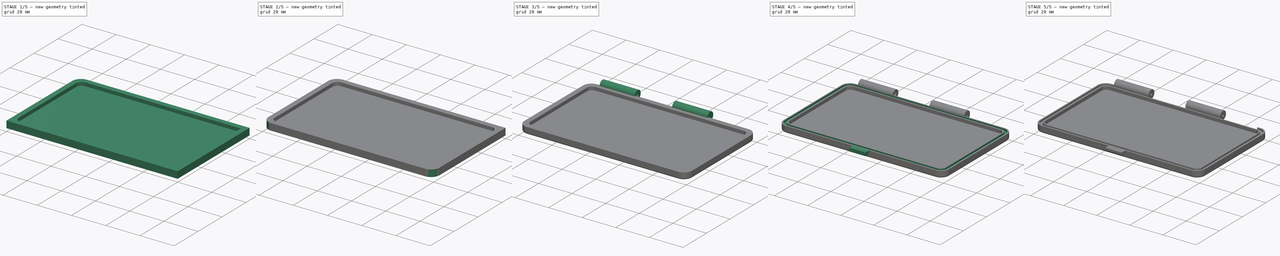
[diagram: build sequence overview — one tinted view per stage of 5, left to right]
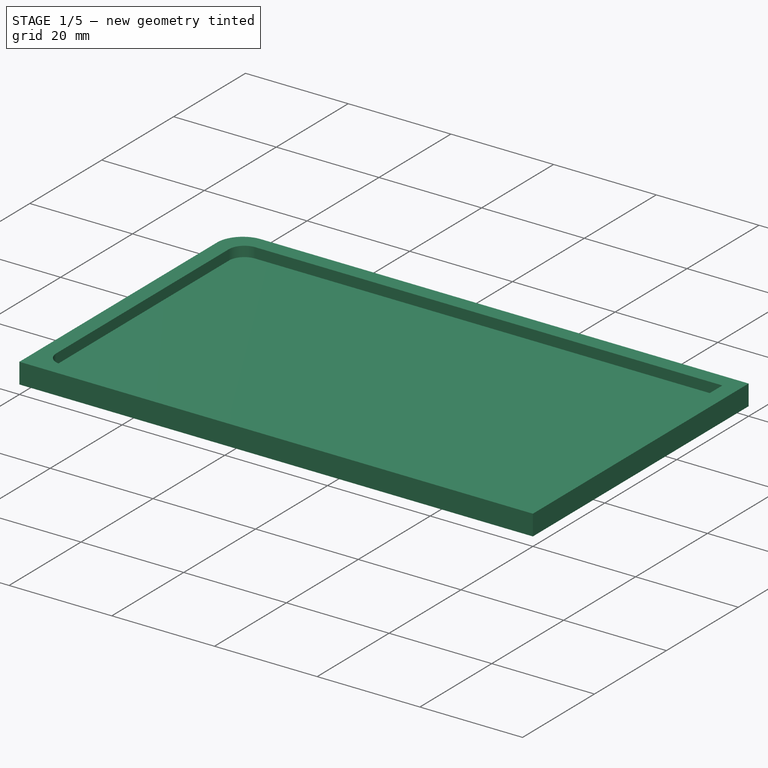
[diagram: stage 1 of 5 — iso view after this stage's code; geometry added in this stage tinted green]
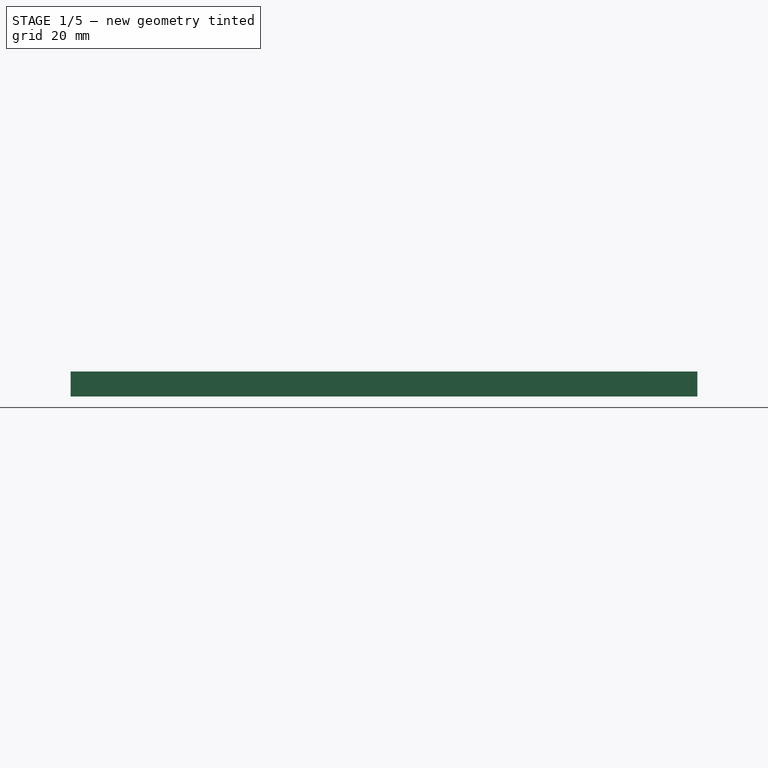
[diagram: stage 1 of 5 — front view after this stage's code; geometry added in this stage tinted green]
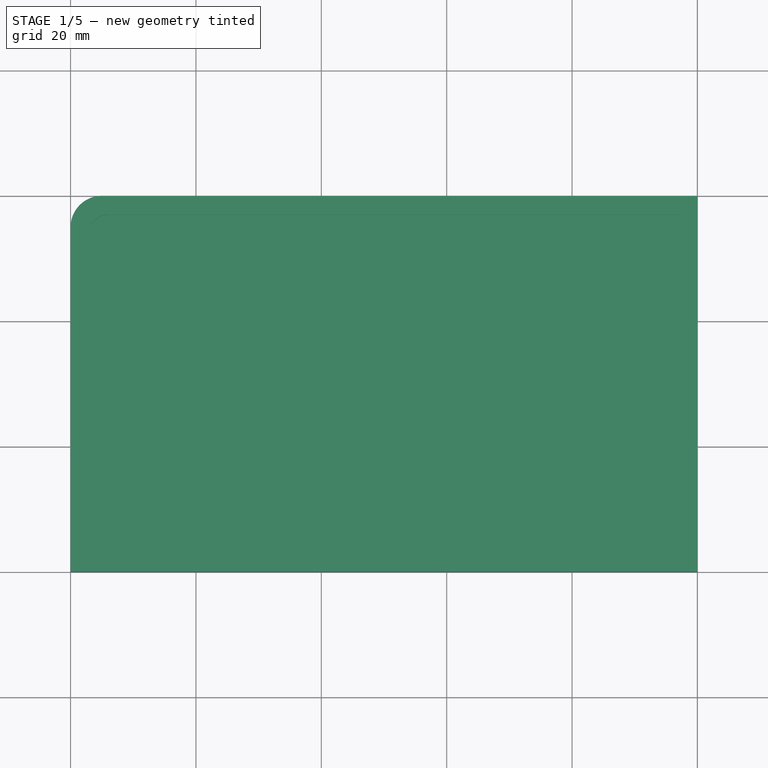
[diagram: stage 1 of 5 — top view after this stage's code; geometry added in this stage tinted green]
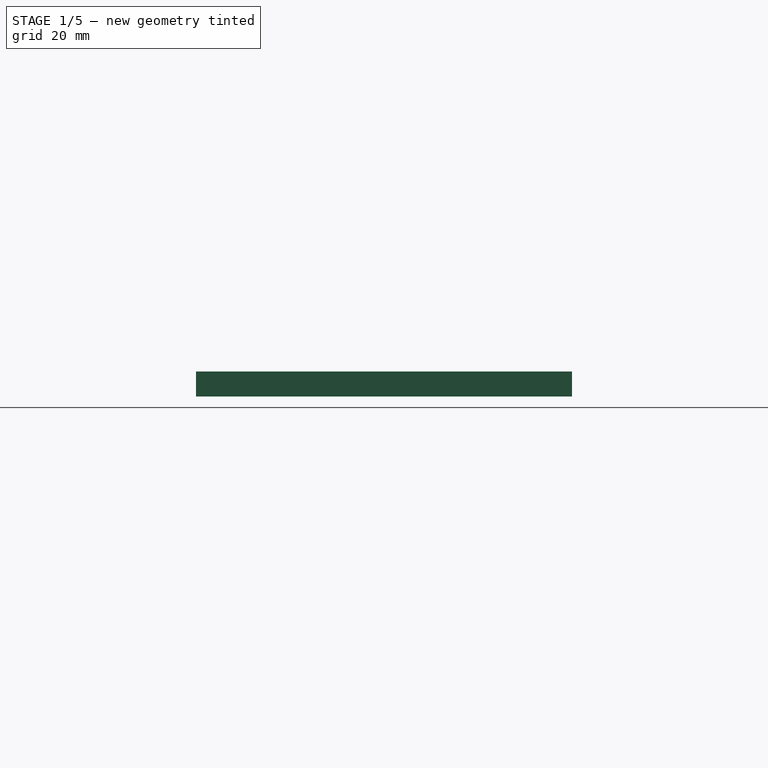
[diagram: stage 1 of 5 — right view after this stage's code; geometry added in this stage tinted green]
FCSTD DOCUMENT  (FreeCAD 0.19R24291 (Git))
Label: funnybox-closing
License: All rights reserved
LicenseURL: http://en.wikipedia.org/wiki/All_rights_reserved
objects: PartDesign::Fillet×12, Sketcher::SketchObject×9, PartDesign::Pocket×3, PartDesign::Pad×2, PartDesign::AdditiveCylinder×2, PartDesign::Hole×2, PartDesign::SubtractiveCylinder×2, PartDesign::Body×1
note: 56 computed .brp shape members not serialized (recipe doc carries the construction recipe); baked Part::Feature solids carry a one-line shape summary decoded from their .brp

FEATURE [Sketcher::SketchObject] Sketch
  FullyConstrained = true
  MapMode = 5
  Support = -> [XY_Plane]
  sketch-geometry (4):
    g0: LineSegment StartX=0 StartY=0 StartZ=0 EndX=100 EndY=0 EndZ=0
    g1: LineSegment StartX=100 StartY=0 StartZ=0 EndX=100 EndY=60 EndZ=0
    g2: LineSegment StartX=100 StartY=60 StartZ=0 EndX=0 EndY=60 EndZ=0
    g3: LineSegment StartX=0 StartY=60 StartZ=0 EndX=0 EndY=0 EndZ=0
  constraints (11):
    c: Coincident(g0,g1)
    c: Coincident(g1,g2)
    c: Coincident(g2,g3)
    c: Coincident(g3,g0)
    c: Horizontal(g0)
    c: Horizontal(g2)
    c: Vertical(g1)
    c: Vertical(g3)
    c: Coincident(g0,g-1)
    c: DistanceY(g3,g3) = 60
    c: DistanceX(g2,g2) = 100
FEATURE [PartDesign::Pad] Pad  label="Main height"
  Direction = (1,1,1)
  Length = 4
  Length2 = 100
  Profile = -> Sketch
  Type = 0
FEATURE [Sketcher::SketchObject] Sketch001
  FullyConstrained = true
  MapMode = 5
  Placement = pos=(0,0,4) rot=(0,0,1;0rad)
  Support = -> [Pad]
  sketch-geometry (4):
    g0: LineSegment StartX=3 StartY=3 StartZ=0 EndX=97 EndY=3 EndZ=0
    g1: LineSegment StartX=97 StartY=3 StartZ=0 EndX=97 EndY=57 EndZ=0
    g2: LineSegment StartX=97 StartY=57 StartZ=0 EndX=3 EndY=57 EndZ=0
    g3: LineSegment StartX=3 StartY=57 StartZ=0 EndX=3 EndY=3 EndZ=0
  constraints (12):
    c: Coincident(g0,g1)
    c: Coincident(g1,g2)
    c: Coincident(g2,g3)
    c: Coincident(g3,g0)
    c: Horizontal(g0)
    c: Horizontal(g2)
    c: Vertical(g1)
    c: Vertical(g3)
    c: DistanceX(g0) = 3
    c: DistanceY(g0) = 3
    c: DistanceX(g0,g0) = 94
    c: DistanceY(g3,g3) = 54
FEATURE [PartDesign::Pocket] Pocket
  BaseFeature = -> Pad
  Length = 2
  Length2 = 100
  Profile = -> Sketch001
  Type = 0
FEATURE [PartDesign::Fillet] Fillet  label="SQ1 Inner"
  Base = -> Pocket [Edge22]
  BaseFeature = -> Pocket
  Radius = 3
  SupportTransform = false
FEATURE [PartDesign::Fillet] Fillet001  label="SQ1 Outer"
  Base = -> Fillet [Edge23]
  BaseFeature = -> Fillet
  Radius = 5
  SupportTransform = false
FEATURE [PartDesign::Fillet] Fillet002  label="SQ2 Inner"
  Base = -> Fillet001 [Edge28]
  BaseFeature = -> Fillet001
  Radius = 3
  SupportTransform = false
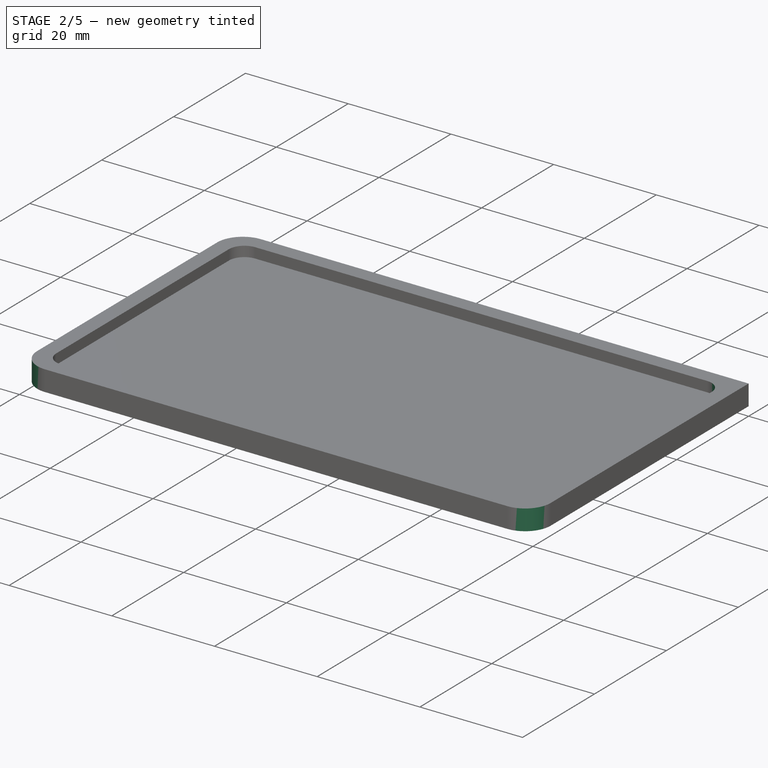
[diagram: stage 2 of 5 — iso view after this stage's code; geometry added in this stage tinted green]
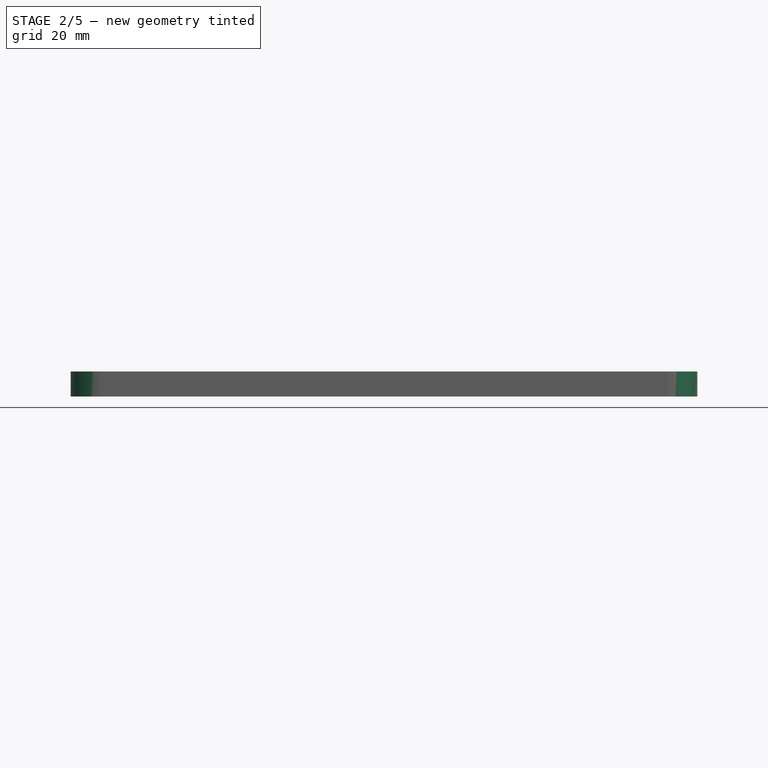
[diagram: stage 2 of 5 — front view after this stage's code; geometry added in this stage tinted green]
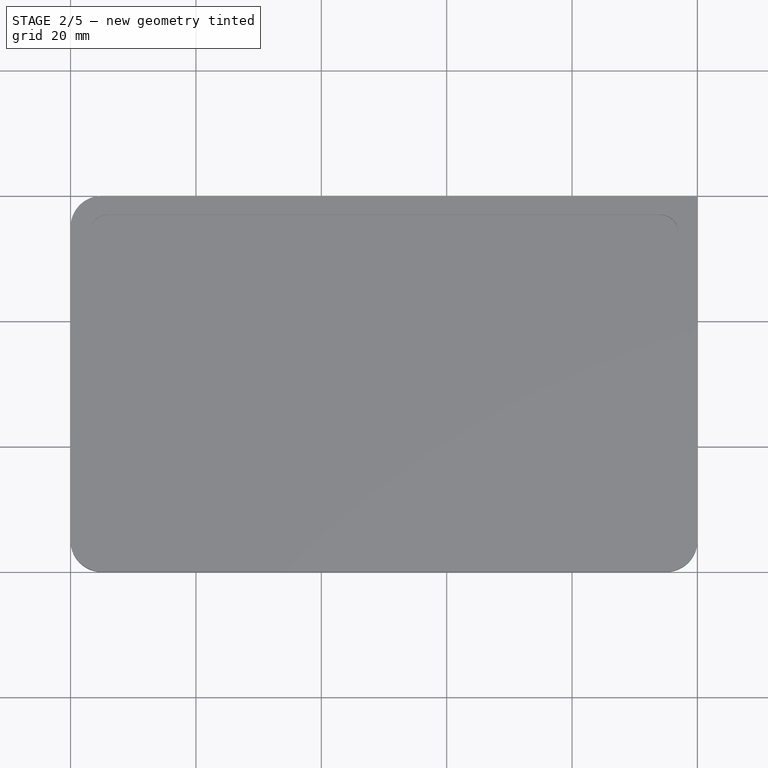
[diagram: stage 2 of 5 — top view after this stage's code; geometry added in this stage tinted green]
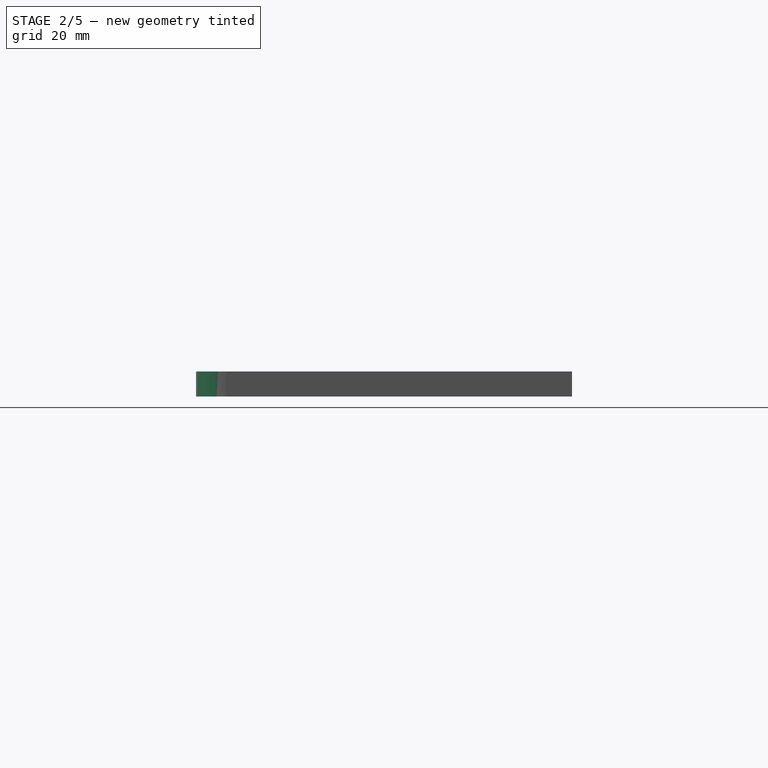
[diagram: stage 2 of 5 — right view after this stage's code; geometry added in this stage tinted green]
FEATURE [PartDesign::Fillet] Fillet003  label="SQ2 Outer"
  Base = -> Fillet002 [Edge26]
  BaseFeature = -> Fillet002
  Radius = 5
  SupportTransform = false
FEATURE [PartDesign::Fillet] Fillet004  label="SQ3 Inner"
  Base = -> Fillet003 [Edge32]
  BaseFeature = -> Fillet003
  Radius = 3
  SupportTransform = false
FEATURE [PartDesign::Fillet] Fillet005  label="SQ3 Outer"
  Base = -> Fillet004 [Edge36]
  BaseFeature = -> Fillet004
  Radius = 5
  SupportTransform = false
FEATURE [PartDesign::Fillet] Fillet006  label="SQ4 Inner"
  Base = -> Fillet005 [Edge36]
  BaseFeature = -> Fillet005
  Radius = 3
  SupportTransform = false
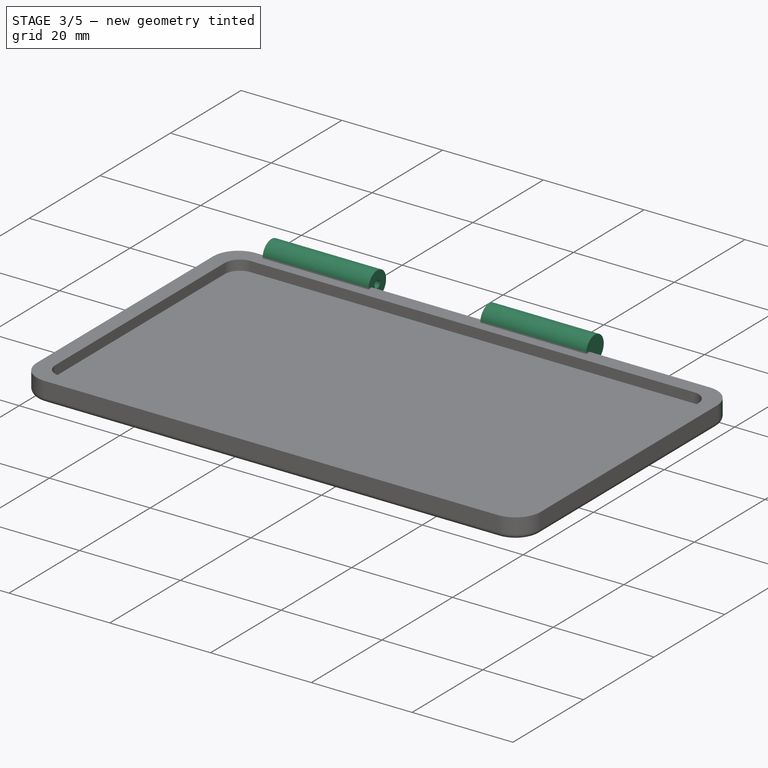
[diagram: stage 3 of 5 — iso view after this stage's code; geometry added in this stage tinted green]
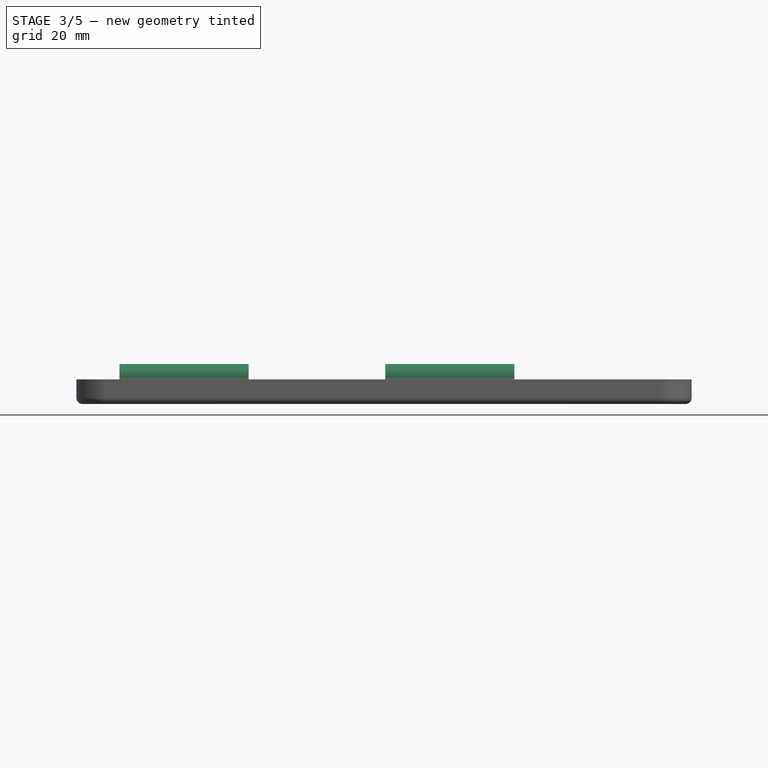
[diagram: stage 3 of 5 — front view after this stage's code; geometry added in this stage tinted green]
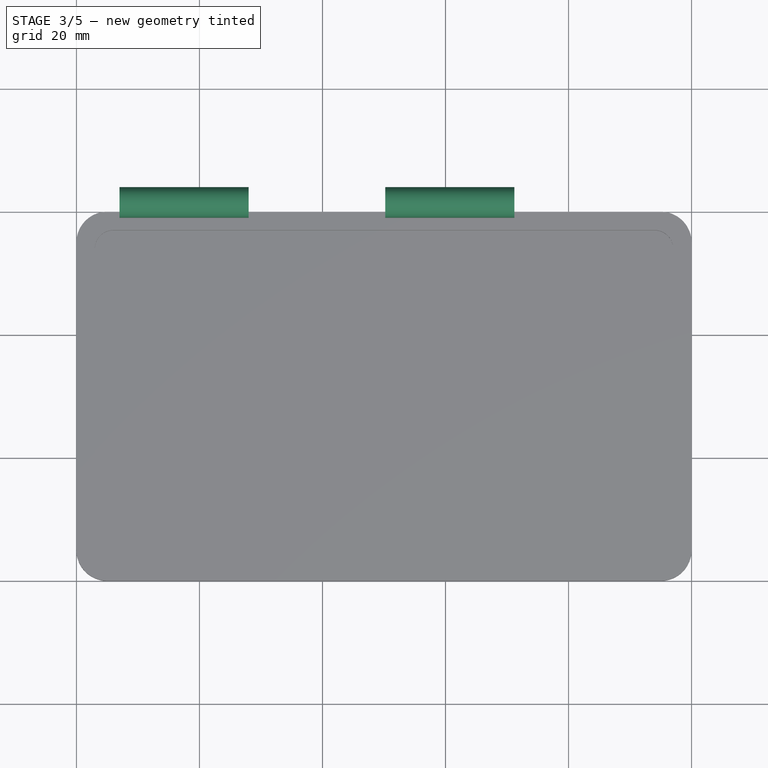
[diagram: stage 3 of 5 — top view after this stage's code; geometry added in this stage tinted green]
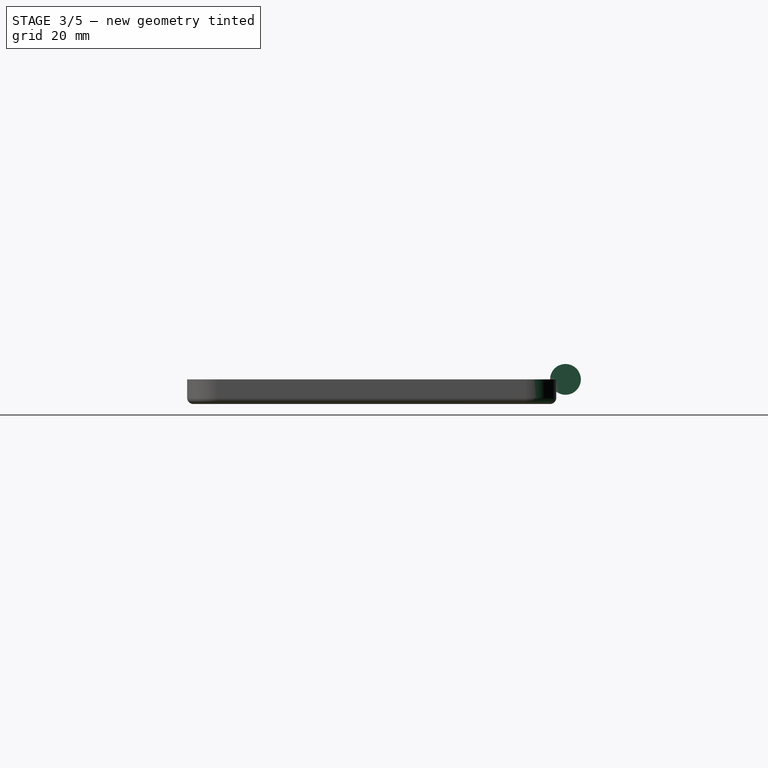
[diagram: stage 3 of 5 — right view after this stage's code; geometry added in this stage tinted green]
FEATURE [PartDesign::Fillet] Fillet007  label="SQ4 Outer"
  Base = -> Fillet006 [Edge40]
  BaseFeature = -> Fillet006
  Radius = 5
  SupportTransform = false
FEATURE [PartDesign::Fillet] Fillet008  label="Round Base"
  Base = -> Fillet007 [Edge17]
  BaseFeature = -> Fillet007
  Radius = 1
  SupportTransform = false
FEATURE [Sketcher::SketchObject] Sketch003
  FullyConstrained = true
  MapMode = 5
  Placement = pos=(0,0,4.5) rot=(0,0,1;0rad)
  sketch-geometry (1):
    g0: LineSegment StartX=7 StartY=61.5 StartZ=0 EndX=24.2 EndY=61.5 EndZ=0
  constraints (4):
    c: Horizontal(g0)
    c: DistanceX(g0) = 7
    c: DistanceY(g0) = 61.5
    c: DistanceX(g0,g0) = 17.2
FEATURE [PartDesign::AdditiveCylinder] Cylinder
  Angle = 360
  AttacherType = Attacher::AttachEngine3D
  AttachmentOffset = pos=(0,-0.5,-21) rot=(0,0,1;0rad)
  BaseFeature = -> Fillet008
  Height = 21
  MapMode = 7
  Placement = pos=(28,61.5,4) rot=(0.57735,-0.57735,-0.57735;2.0944rad)
  Radius = 2.5
  Support = -> [Sketch003]
FEATURE [Sketcher::SketchObject] Sketch004
  FullyConstrained = true
  MapMode = 5
  Placement = pos=(0,0,4.5) rot=(0,0,1;0rad)
  sketch-geometry (1):
    g0: LineSegment StartX=50 StartY=61.5 StartZ=0 EndX=67.2 EndY=61.5 EndZ=0
  constraints (4):
    c: Horizontal(g0)
    c: DistanceX(g0) = 50
    c: DistanceY(g0) = 61.5
    c: DistanceX(g0,g0) = 17.2
FEATURE [PartDesign::Hole] Hole
  BaseFeature = -> Cylinder
  Depth = 25
  DepthType = 0
  Diameter = 1.5
  DrillForDepth = false
  DrillPoint = 1
  DrillPointAngle = 118
  HoleCutCountersinkAngle = 90
  HoleCutCustomValues = false
  HoleCutDepth = 0
  HoleCutDiameter = 6.1
  HoleCutType = 0
  ModelActualThread = false
  Placement = pos=(28,61.5,4) rot=(0.57735,-0.57735,-0.57735;2.0944rad)
  Profile = -> Cylinder [Face16]
  Tapered = false
  TaperedAngle = 90
  ThreadAngle = 0
  ThreadClass = 0
  ThreadCutOffInner = 0
  ThreadCutOffOuter = 0
  ThreadDirection = 0
  ThreadFit = 0
  ThreadPitch = 0
  ThreadSize = 0
  ThreadType = 0
  Threaded = false
FEATURE [PartDesign::AdditiveCylinder] Cylinder001
  Angle = 360
  AttacherType = Attacher::AttachEngine3D
  AttachmentOffset = pos=(0,-0.5,-21.2) rot=(0,0,1;0rad)
  BaseFeature = -> Hole
  Height = 21
  MapMode = 7
  Placement = pos=(71.2,61.5,4) rot=(0.57735,-0.57735,-0.57735;2.0944rad)
  Radius = 2.5
  Support = -> [Sketch004]
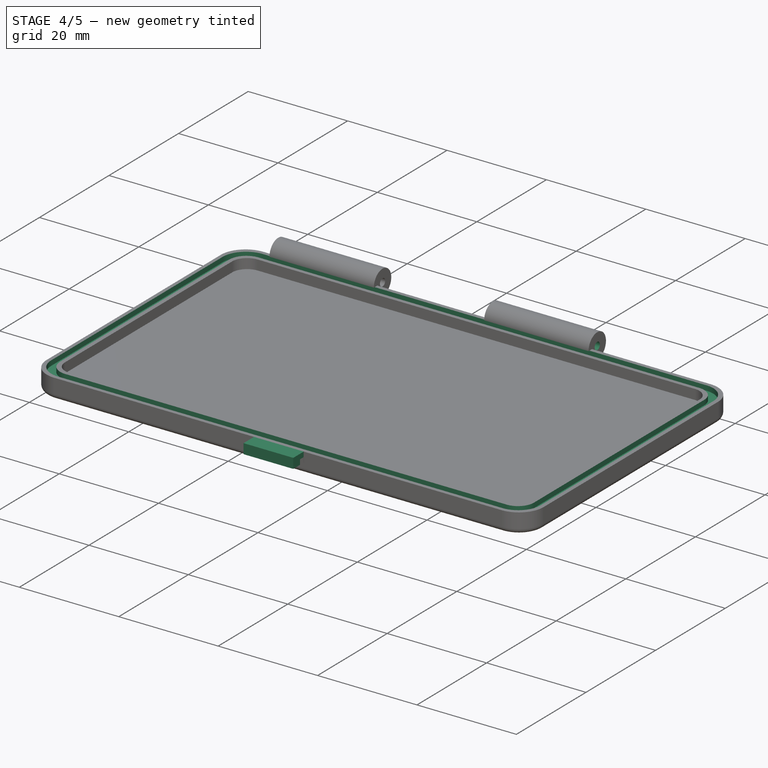
[diagram: stage 4 of 5 — iso view after this stage's code; geometry added in this stage tinted green]
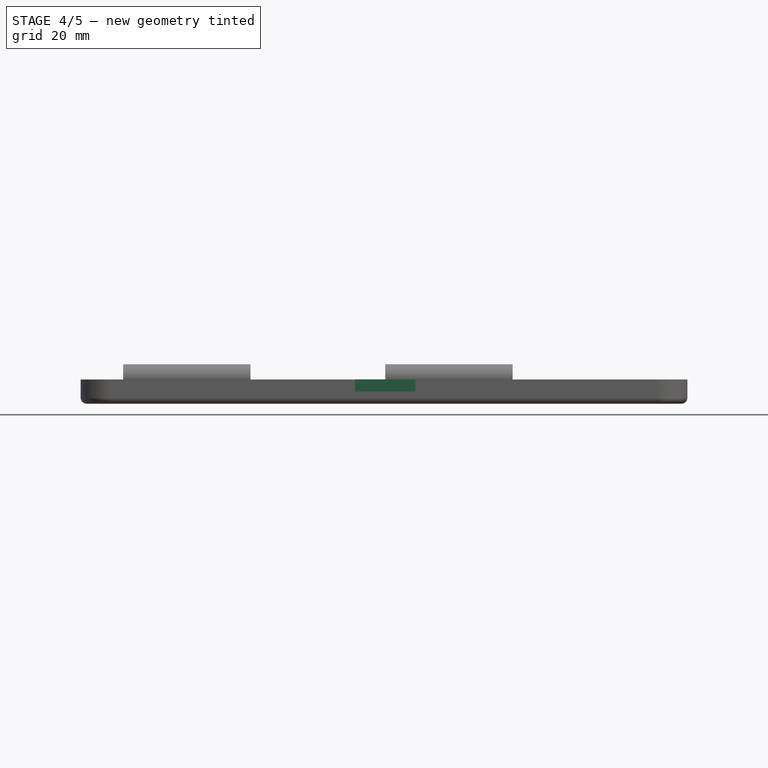
[diagram: stage 4 of 5 — front view after this stage's code; geometry added in this stage tinted green]
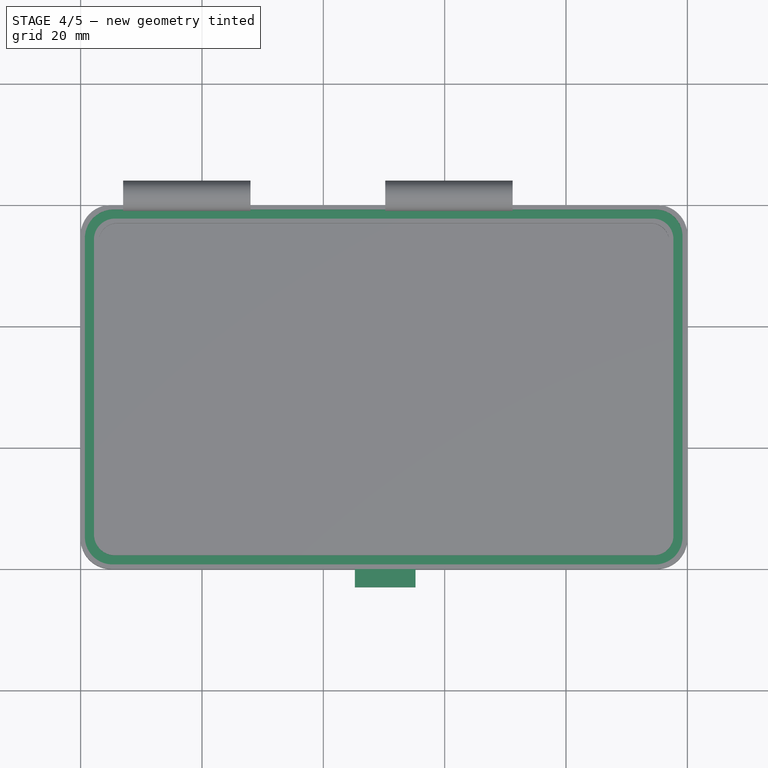
[diagram: stage 4 of 5 — top view after this stage's code; geometry added in this stage tinted green]
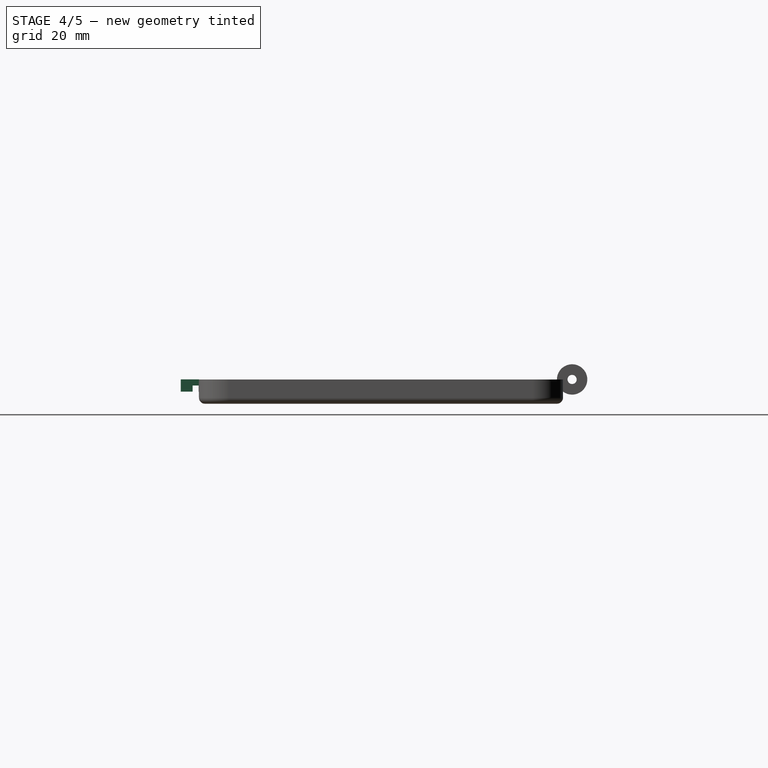
[diagram: stage 4 of 5 — right view after this stage's code; geometry added in this stage tinted green]
FEATURE [PartDesign::Hole] Hole001
  BaseFeature = -> Cylinder001
  Depth = 25
  DepthType = 0
  Diameter = 1.5
  DrillForDepth = false
  DrillPoint = 1
  DrillPointAngle = 118
  HoleCutCountersinkAngle = 90
  HoleCutCustomValues = false
  HoleCutDepth = 0
  HoleCutDiameter = 6.1
  HoleCutType = 0
  ModelActualThread = false
  Placement = pos=(71.2,61.5,4) rot=(0.57735,-0.57735,-0.57735;2.0944rad)
  Profile = -> Cylinder001 [Face19]
  Tapered = false
  TaperedAngle = 90
  ThreadAngle = 0
  ThreadClass = 0
  ThreadCutOffInner = 0
  ThreadCutOffOuter = 0
  ThreadDirection = 0
  ThreadFit = 0
  ThreadPitch = 0
  ThreadSize = 0
  ThreadType = 0
  Threaded = false
FEATURE [Sketcher::SketchObject] Sketch006
  FullyConstrained = false
  MapMode = 5
  Placement = pos=(71.2,-1.492e-13,4) rot=(0.57735,-0.57735,0.57735;2.0944rad)
  sketch-geometry (4):
    g0: LineSegment StartX=-2 StartY=26 StartZ=0 EndX=0.003395 EndY=26 EndZ=0
    g1: LineSegment StartX=0.003395 StartY=26 StartZ=0 EndX=0.003395 EndY=16 EndZ=0
    g2: LineSegment StartX=0.003395 StartY=16 StartZ=0 EndX=-2 EndY=16 EndZ=0
    g3: LineSegment StartX=-2 StartY=16 StartZ=0 EndX=-2 EndY=26 EndZ=0
  constraints (11):
    c: Coincident(g0,g1)
    c: Coincident(g1,g2)
    c: Coincident(g2,g3)
    c: Coincident(g3,g0)
    c: Horizontal(g0)
    c: Horizontal(g2)
    c: Vertical(g1)
    c: Vertical(g3)
    c: DistanceX(g0) = -2
    c: DistanceY(g0) = 26
    c: DistanceY(g3,g3) = 10
FEATURE [PartDesign::Pad] Pad001  label="closing"
  BaseFeature = -> Hole001
  Direction = (1,1,1)
  Length = 3
  Length2 = 100
  Placement = pos=(71.2,61.5,4) rot=(0.57735,-0.57735,-0.57735;2.0944rad)
  Profile = -> Sketch006
  Type = 0
FEATURE [Sketcher::SketchObject] Sketch005
  FullyConstrained = false
  MapMode = 5
  Placement = pos=(71.2,61.5,4) rot=(0,0,1;1.5708rad)
  Support = -> [Pad001]
  sketch-geometry (24):
    g0: LineSegment StartX=-6.98866 StartY=70.5 StartZ=0 EndX=-56.1987 EndY=70.5 EndZ=0
    g1: LineSegment StartX=-60.75 StartY=65.9487 StartZ=0 EndX=-60.75 EndY=-23.4996 EndZ=0
    g2: LineSegment StartX=-56.2496 StartY=-28 StartZ=0 EndX=-6.66338 EndY=-28 EndZ=0
    g3: LineSegment StartX=-2.25 StartY=-23.5866 StartZ=0 EndX=-2.25 EndY=65.7613 EndZ=0
    g4: ArcOfCircle CenterX=-56.1987 CenterY=65.9487 CenterZ=0 NormalX=0 NormalY=0 NormalZ=1 AngleXU=0 Radius=4.55135 StartAngle=1.5708 EndAngle=3.14159
    g5: GeomPoint X=-60.75 Y=70.5 Z=0
    g6: ArcOfCircle CenterX=-6.98866 CenterY=65.7613 CenterZ=0 NormalX=0 NormalY=0 NormalZ=1 AngleXU=0 Radius=4.73866 StartAngle=0 EndAngle=1.5708
    g7: GeomPoint X=-2.25 Y=70.5 Z=0
    g8: ArcOfCircle CenterX=-6.66338 CenterY=-23.5866 CenterZ=0 NormalX=0 NormalY=0 NormalZ=1 AngleXU=0 Radius=4.41338 StartAngle=4.71239 EndAngle=6.28319
    g9: GeomPoint X=-2.25 Y=-28 Z=0
    g10: ArcOfCircle CenterX=-56.2496 CenterY=-23.4996 CenterZ=0 NormalX=0 NormalY=0 NormalZ=1 AngleXU=0 Radius=4.50037 StartAngle=3.14159 EndAngle=4.71239
    g11: GeomPoint X=-60.75 Y=-28 Z=0
    g12: LineSegment StartX=-7.18928 StartY=69 StartZ=0 EndX=-55.7781 EndY=69 EndZ=0
    g13: LineSegment StartX=-59.25 StartY=65.5281 StartZ=0 EndX=-59.25 EndY=-23.2692 EndZ=0
    g14: LineSegment StartX=-56.0192 StartY=-26.5 StartZ=0 EndX=-7.12416 EndY=-26.5 EndZ=0
    g15: LineSegment StartX=-3.75 StartY=-23.1258 StartZ=0 EndX=-3.75 EndY=65.5607 EndZ=0
    g16: ArcOfCircle CenterX=-7.12416 CenterY=-23.1258 CenterZ=0 NormalX=0 NormalY=0 NormalZ=1 AngleXU=0 Radius=3.37416 StartAngle=4.71239 EndAngle=6.28319
    g17: GeomPoint X=-3.75 Y=-26.5 Z=0
    g18: ArcOfCircle CenterX=-56.0192 CenterY=-23.2692 CenterZ=0 NormalX=0 NormalY=0 NormalZ=1 AngleXU=0 Radius=3.23075 StartAngle=3.14159 EndAngle=4.71239
    g19: GeomPoint X=-59.25 Y=-26.5 Z=0
    g20: ArcOfCircle CenterX=-7.18928 CenterY=65.5607 CenterZ=0 NormalX=0 NormalY=0 NormalZ=1 AngleXU=0 Radius=3.43928 StartAngle=1e-16 EndAngle=1.5708
    g21: GeomPoint X=-3.75 Y=69 Z=0
    g22: ArcOfCircle CenterX=-55.7781 CenterY=65.5281 CenterZ=0 NormalX=0 NormalY=0 NormalZ=1 AngleXU=0 Radius=3.47195 StartAngle=1.5708 EndAngle=3.14159
    g23: GeomPoint X=-59.25 Y=69 Z=0
  constraints (48):
    c: Horizontal(g0)
    c: Horizontal(g2)
    c: Vertical(g1)
    c: Vertical(g3)
    c: DistanceX(g7) = -2.25
    c: DistanceY(g7) = 70.5
    c: DistanceX(g5,g7) = 58.5
    c: DistanceY(g11,g5) = 98.5
    c: PointOnObject(g5,g0)
    c: PointOnObject(g5,g1)
    c: Tangent(g0,g4) = -1.5708
    c: Tangent(g1,g4) = -1.5708
    c: PointOnObject(g7,g0)
    c: PointOnObject(g7,g3)
    c: Tangent(g0,g6) = -1.5708
    c: Tangent(g3,g6) = -1.5708
    c: PointOnObject(g9,g2)
    c: PointOnObject(g9,g3)
    c: Tangent(g2,g8) = -1.5708
    c: Tangent(g3,g8) = -1.5708
    c: PointOnObject(g11,g1)
    c: PointOnObject(g11,g2)
    c: Tangent(g1,g10) = -1.5708
    c: Tangent(g2,g10) = -1.5708
    c: Horizontal(g12)
    c: Horizontal(g14)
    c: Vertical(g13)
    c: Vertical(g15)
    c: DistanceX(g21) = -3.75
    c: DistanceY(g21) = 69
    c: DistanceX(g23,g21) = 55.5
    c: DistanceY(g17,g21) = 95.5
    c: PointOnObject(g17,g14)
    c: PointOnObject(g17,g15)
    c: Tangent(g14,g16) = -1.5708
    c: Tangent(g15,g16) = -1.5708
    c: PointOnObject(g19,g13)
    c: PointOnObject(g19,g14)
    c: Tangent(g13,g18) = -1.5708
    c: Tangent(g14,g18) = -1.5708
    c: PointOnObject(g21,g12)
    c: PointOnObject(g21,g15)
    c: Tangent(g12,g20) = -1.5708
    c: Tangent(g15,g20) = -1.5708
    c: PointOnObject(g23,g12)
    c: PointOnObject(g23,g13)
    c: Tangent(g12,g22) = -1.5708
    c: Tangent(g13,g22) = -1.5708
FEATURE [Sketcher::SketchObject] Sketch007
  FullyConstrained = true
  MapMode = 5
  Placement = pos=(71.5,60.5,2) rot=(-0.707107,0.707107,0;3.14159rad)
  sketch-geometry (4):
    g0: LineSegment StartX=61.55 StartY=27.2 StartZ=0 EndX=60.55 EndY=27.2 EndZ=0
    g1: LineSegment StartX=60.55 StartY=27.2 StartZ=0 EndX=60.55 EndY=15.6 EndZ=0
    g2: LineSegment StartX=60.55 StartY=15.6 StartZ=0 EndX=61.55 EndY=15.6 EndZ=0
    g3: LineSegment StartX=61.55 StartY=15.6 StartZ=0 EndX=61.55 EndY=27.2 EndZ=0
  constraints (12):
    c: Coincident(g0,g1)
    c: Coincident(g1,g2)
    c: Coincident(g2,g3)
    c: Coincident(g3,g0)
    c: Horizontal(g0)
    c: Horizontal(g2)
    c: Vertical(g1)
    c: Vertical(g3)
    c: DistanceX(g1) = 60.55
    c: DistanceY(g1) = 15.6
    c: DistanceX(g2,g2) = 1
    c: DistanceY(g3,g3) = 11.6
FEATURE [PartDesign::Pocket] Pocket001  label="rubber hole"
  BaseFeature = -> Pad001
  Length = 1
  Length2 = 100
  Placement = pos=(71.2,61.5,4) rot=(0.57735,-0.57735,-0.57735;2.0944rad)
  Profile = -> Sketch005
  Type = 0
FEATURE [PartDesign::Pocket] Pocket002  label="closing hole"
  BaseFeature = -> Pocket001
  Length = 1
  Length2 = 100
  Placement = pos=(71.2,61.5,4) rot=(0.57735,-0.57735,-0.57735;2.0944rad)
  Profile = -> Sketch007
  Type = 0
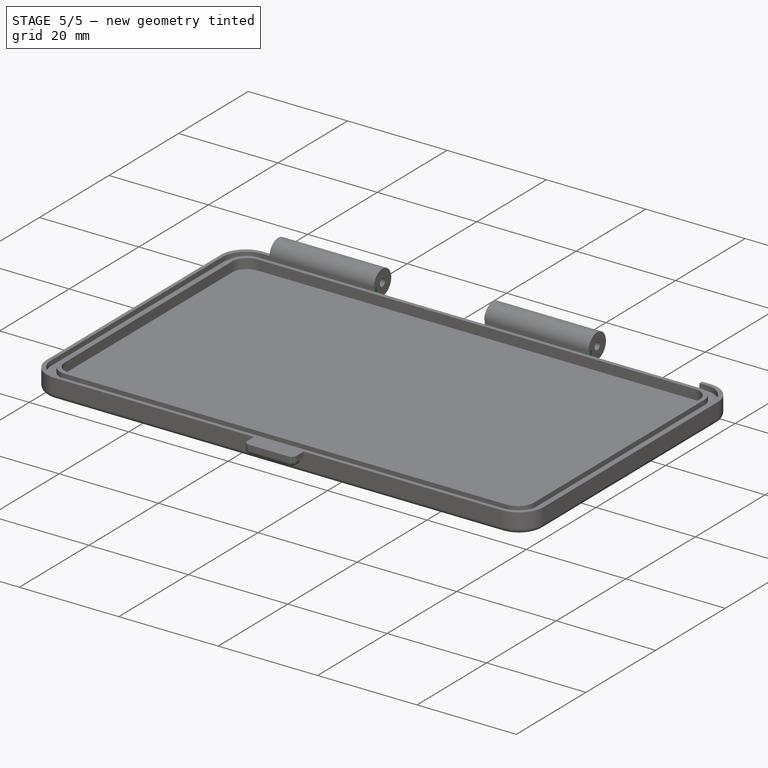
[diagram: stage 5 of 5 — iso view after this stage's code; geometry added in this stage tinted green]
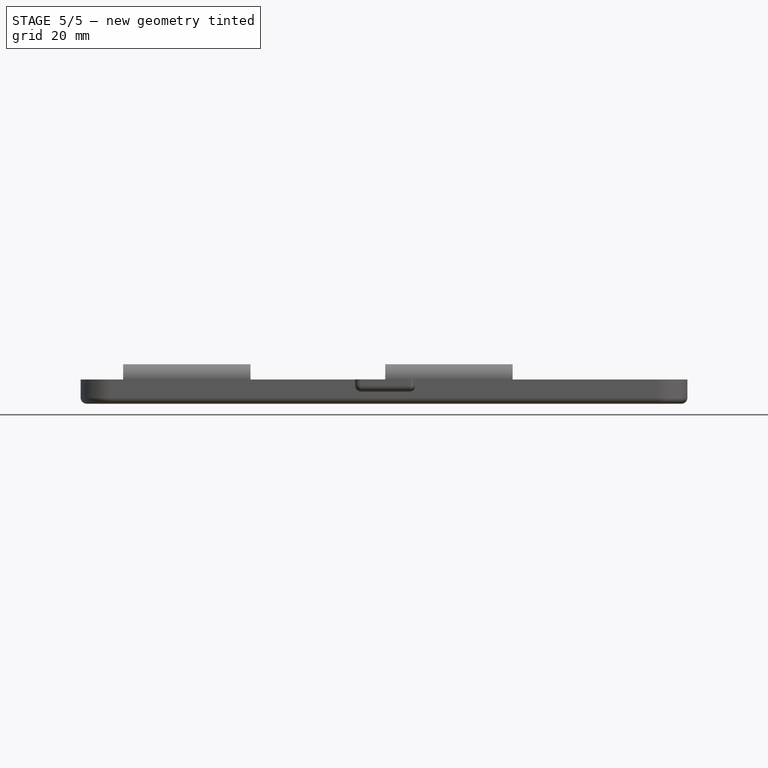
[diagram: stage 5 of 5 — front view after this stage's code; geometry added in this stage tinted green]
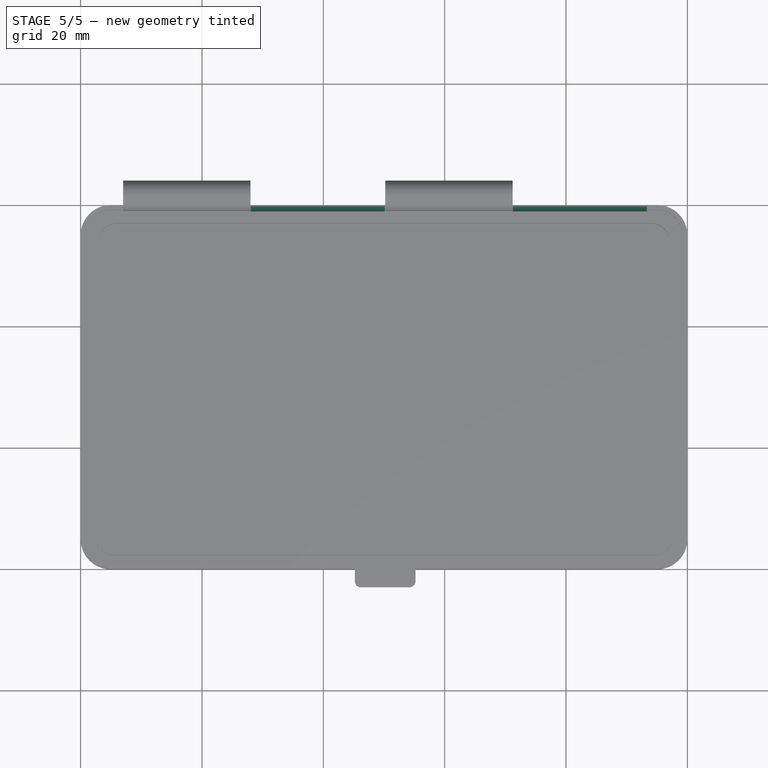
[diagram: stage 5 of 5 — top view after this stage's code; geometry added in this stage tinted green]
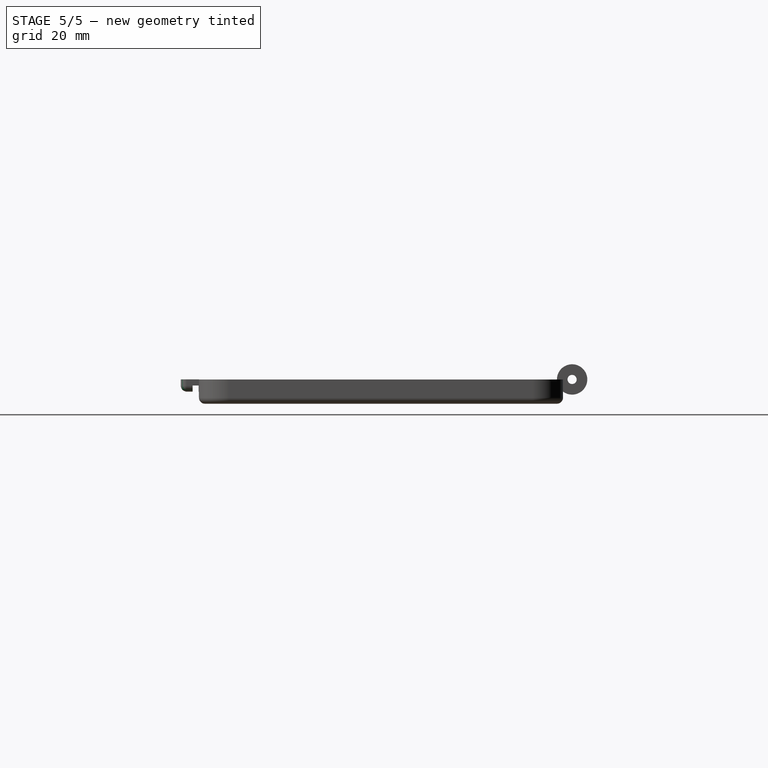
[diagram: stage 5 of 5 — right view after this stage's code; geometry added in this stage tinted green]
FEATURE [PartDesign::Fillet] Fillet009  label="closing round 1"
  Base = -> Pocket002 [Edge108]
  BaseFeature = -> Pocket002
  Placement = pos=(71.2,61.5,4) rot=(0.57735,-0.57735,-0.57735;2.0944rad)
  Radius = 1
  SupportTransform = false
FEATURE [PartDesign::Fillet] Fillet010  label="closing round 2"
  Base = -> Fillet009 [Edge35]
  BaseFeature = -> Fillet009
  Placement = pos=(71.2,61.5,4) rot=(0.57735,-0.57735,-0.57735;2.0944rad)
  Radius = 1
  SupportTransform = false
FEATURE [PartDesign::Fillet] Fillet011
  Base = -> Fillet010 [Edge1]
  BaseFeature = -> Fillet010
  Placement = pos=(71.2,61.5,4) rot=(0.57735,-0.57735,-0.57735;2.0944rad)
  Radius = 1
  SupportTransform = false
FEATURE [Sketcher::SketchObject] Sketch008
  FullyConstrained = false
  MapMode = 5
  Placement = pos=(71.2,61.5,4) rot=(0,0,1;1.5708rad)
  Support = -> [Fillet011]
  sketch-geometry (1):
    g0: LineSegment StartX=0 StartY=43.15 StartZ=0 EndX=0 EndY=21.05 EndZ=0
  constraints (3):
    c: DistanceX(g0) = 0
    c: DistanceY(g0) = 43.15
    c: DistanceY(g0,g0) = 22.1
FEATURE [PartDesign::SubtractiveCylinder] Cylinder002
  Angle = 360
  AttacherType = Attacher::AttachEngine3D
  AttachmentOffset = pos=(0,0,-22.08) rot=(0,0,1;0rad)
  BaseFeature = -> Fillet011
  Height = 22.1
  MapMode = 7
  Placement = pos=(50.13,61.5,4) rot=(0.57735,-0.57735,-0.57735;2.0944rad)
  Radius = 2.75
  Support = -> [Sketch008]
FEATURE [Sketcher::SketchObject] Sketch009
  FullyConstrained = false
  MapMode = 5
  Placement = pos=(50.13,61.5,4) rot=(0,0,1;1.5708rad)
  Support = -> [Cylinder002]
  sketch-geometry (1):
    g0: LineSegment StartX=0 StartY=-21.2 StartZ=0 EndX=0 EndY=-43.45 EndZ=0
  constraints (3):
    c: DistanceX(g0) = 0
    c: DistanceY(g0) = -21.2
    c: DistanceY(g0,g0) = 22.25
FEATURE [PartDesign::SubtractiveCylinder] Cylinder003
  Angle = 360
  AttacherType = Attacher::AttachEngine3D
  AttachmentOffset = pos=(0,0,-22) rot=(0,0,1;0rad)
  BaseFeature = -> Cylinder002
  Height = 22.1
  MapMode = 7
  Placement = pos=(93.33,61.5,4) rot=(0.57735,-0.57735,-0.57735;2.0944rad)
  Radius = 2.75
  Support = -> [Sketch009]
FEATURE [PartDesign::Body] Body
  Group = -> [Sketch,Pad,Sketch001,Pocket,Fillet,Fillet001,Fillet002,Fillet003,Fillet004,Fillet005,Fillet006,Fillet007,Fillet008,Cylinder,Sketch004,Hole,Sketch003,Cylinder001,Hole001,Sketch005,Sketch006,Pad001,Sketch007,Pocket001,Pocket002,Fillet009,Fillet010,Fillet011,Sketch008,Cylinder002,Sketch009,Cylinder003]
  Origin = -> Origin
  Tip = -> Cylinder003
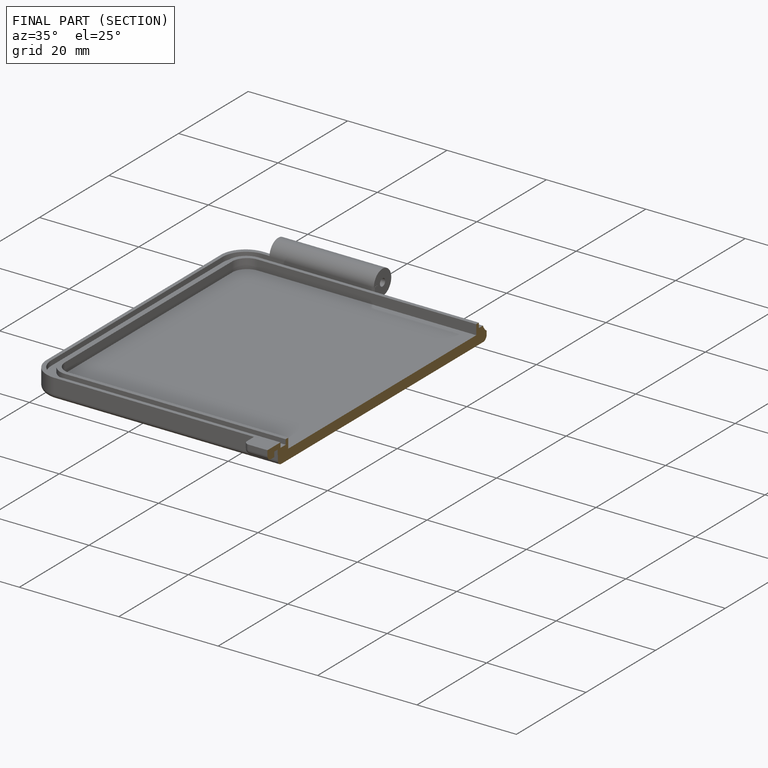
[diagram: finished part — half-section view (interior)]
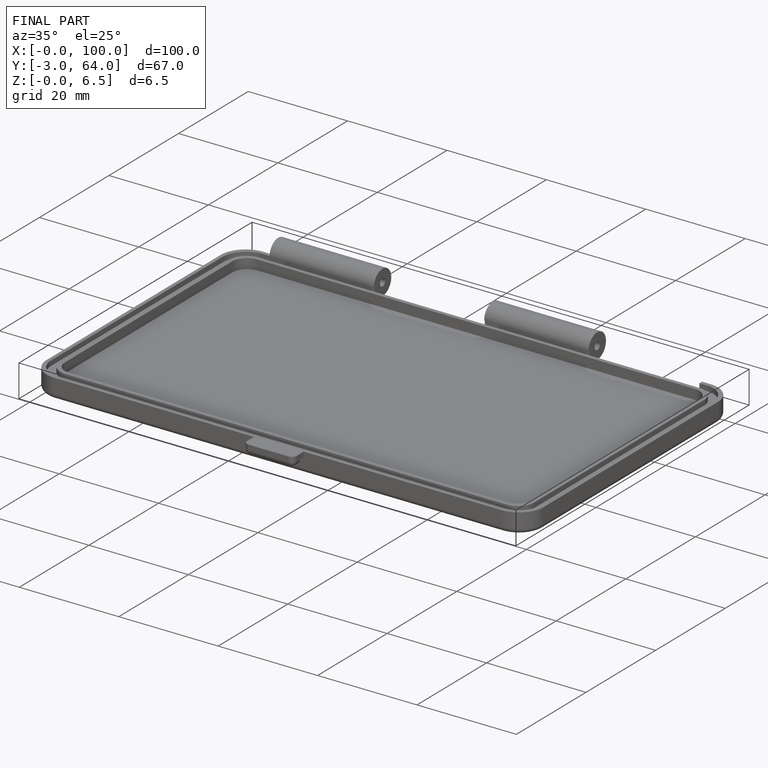
[diagram: finished part — iso view with bounding-box wireframe]
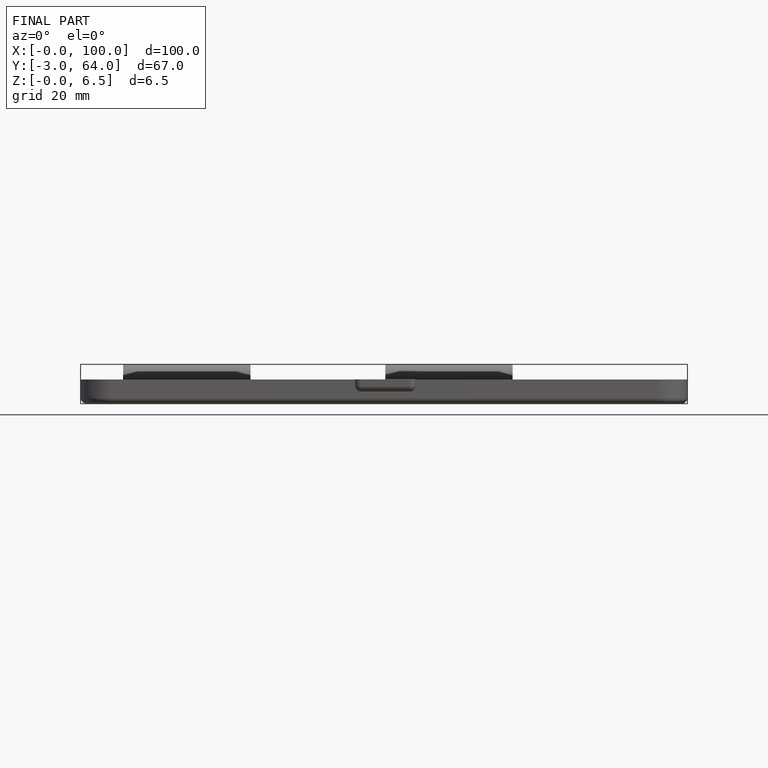
[diagram: finished part — front view with bounding-box wireframe]
